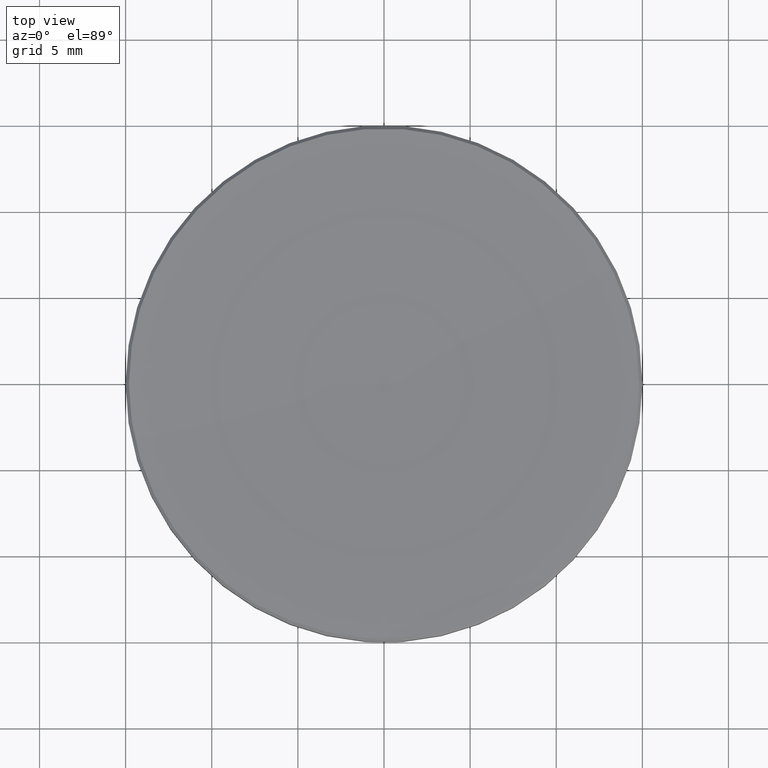
[diagram: clean part render]
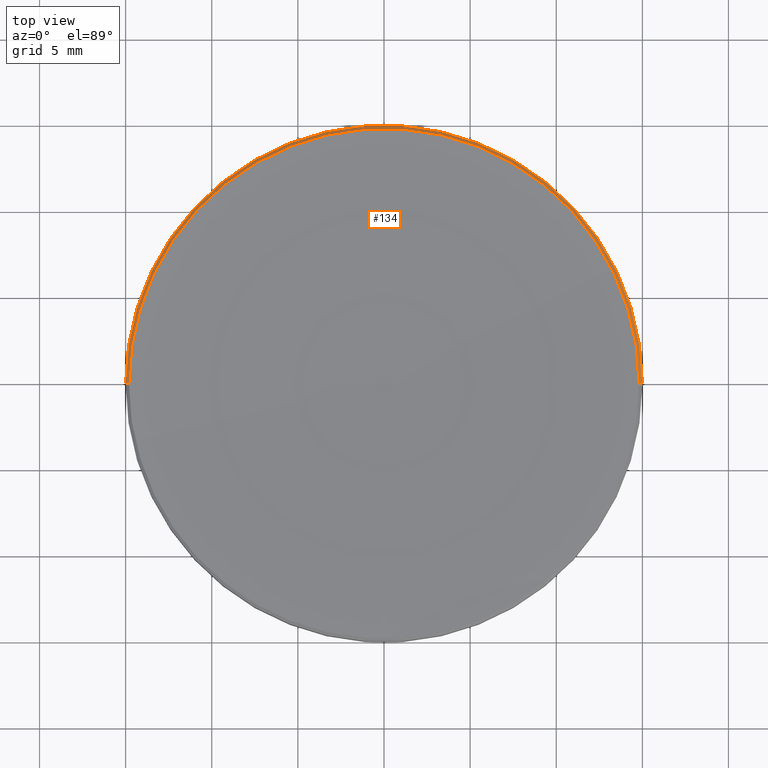
[diagram: same view with one face highlighted and labeled with its STEP entity id]
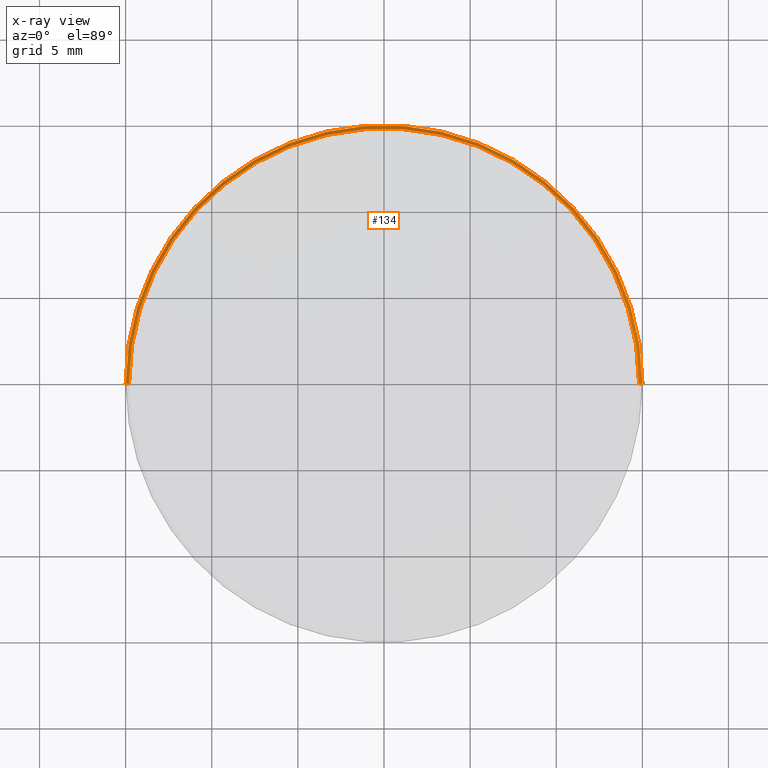
[diagram: x-ray of the same camera — body ghosted, the highlighted face saturated]
A machine part, top view. The second image highlights one B-rep face of the part: STEP entity #134.
The next image is the same camera in x-ray: the body ghosted, the highlighted face saturated — about 0% of this face is hidden behind the body in this view.
In plain terms, the highlighted conical surface has half-angle 45 deg.
Its self-contained STEP definition (entity closure, byte-faithful):
#7 = CARTESIAN_POINT ( 'NONE',  ( 14.81098008019379542, 1.813821934744454036E-15, 2.929019919806208350 ) ) ;
#20 = VERTEX_POINT ( 'NONE', #85 ) ;
#28 = DIRECTION ( 'NONE',  ( 0.000000000000000000, 0.000000000000000000, -1.000000000000000000 ) ) ;
#39 = AXIS2_PLACEMENT_3D ( 'NONE', #66, #229, #137 ) ;
#43 = EDGE_CURVE ( 'NONE', #20, #99, #54, .T. ) ;
#44 = CARTESIAN_POINT ( 'NONE',  ( -14.81098008019379542, 0.000000000000000000, 2.929019919806208350 ) ) ;
#54 = LINE ( 'NONE', #44, #136 ) ;
#66 = CARTESIAN_POINT ( 'NONE',  ( 0.000000000000000000, 0.000000000000000000, 2.929019919806263861 ) ) ;
#79 = CARTESIAN_POINT ( 'NONE',  ( 0.000000000000000000, 0.000000000000000000, 2.929019919806208350 ) ) ;
#84 = CIRCLE ( 'NONE', #149, 15.00000000000000000 ) ;
#85 = CARTESIAN_POINT ( 'NONE',  ( -14.81098008019427681, 1.813821934744513201E-15, 2.929019919806235883 ) ) ;
#90 = VECTOR ( 'NONE', #96, 1000.000000000000114 ) ;
#95 = EDGE_CURVE ( 'NONE', #99, #170, #84, .T. ) ;
#96 = DIRECTION ( 'NONE',  ( 0.7071067811865766606, 8.659560562355291543E-17, -0.7071067811865182628 ) ) ;
#99 = VERTEX_POINT ( 'NONE', #232 ) ;
#108 = CONICAL_SURFACE ( 'NONE', #116, 14.81098008019379542, 0.7853981633974895793 ) ;
#116 = AXIS2_PLACEMENT_3D ( 'NONE', #79, #169, #258 ) ;
#119 = DIRECTION ( 'NONE',  ( -1.000000000000000000, 0.000000000000000000, 0.000000000000000000 ) ) ;
#121 = VERTEX_POINT ( 'NONE', #141 ) ;
#123 = CARTESIAN_POINT ( 'NONE',  ( 15.00000000000000000, 0.000000000000000000, 2.740000000000020197 ) ) ;
#133 = CARTESIAN_POINT ( 'NONE',  ( 0.000000000000000000, 0.000000000000000000, 2.740000000000020197 ) ) ;
#134 = ADVANCED_FACE ( 'NONE', ( #187 ), #108, .T. ) ;
#136 = VECTOR ( 'NONE', #174, 1000.000000000000114 ) ;
#137 = DIRECTION ( 'NONE',  ( 1.000000000000000000, 0.000000000000000000, 0.000000000000000000 ) ) ;
#141 = CARTESIAN_POINT ( 'NONE',  ( 14.81098008019427681, 0.000000000000000000, 2.929019919806235883 ) ) ;
#149 = AXIS2_PLACEMENT_3D ( 'NONE', #133, #28, #119 ) ;
#153 = EDGE_CURVE ( 'NONE', #121, #170, #257, .T. ) ;
#159 = ORIENTED_EDGE ( 'NONE', *, *, #95, .F. ) ;
#162 = ORIENTED_EDGE ( 'NONE', *, *, #43, .F. ) ;
#169 = DIRECTION ( 'NONE',  ( 0.000000000000000000, 0.000000000000000000, -1.000000000000000000 ) ) ;
#170 = VERTEX_POINT ( 'NONE', #123 ) ;
#174 = DIRECTION ( 'NONE',  ( -0.7071067811865766606, 0.000000000000000000, -0.7071067811865182628 ) ) ;
#187 = FACE_OUTER_BOUND ( 'NONE', #265, .T. ) ;
#198 = CIRCLE ( 'NONE', #39, 14.81098008019381673 ) ;
#224 = ORIENTED_EDGE ( 'NONE', *, *, #227, .F. ) ;
#227 = EDGE_CURVE ( 'NONE', #121, #20, #198, .T. ) ;
#229 = DIRECTION ( 'NONE',  ( -0.000000000000000000, -0.000000000000000000, 1.000000000000000000 ) ) ;
#232 = CARTESIAN_POINT ( 'NONE',  ( -15.00000000000000000, 1.836970198721029589E-15, 2.740000000000020197 ) ) ;
#242 = ORIENTED_EDGE ( 'NONE', *, *, #153, .T. ) ;
#257 = LINE ( 'NONE', #7, #90 ) ;
#258 = DIRECTION ( 'NONE',  ( -1.000000000000000000, 0.000000000000000000, 0.000000000000000000 ) ) ;
#265 = EDGE_LOOP ( 'NONE', ( #224, #242, #159, #162 ) ) ;